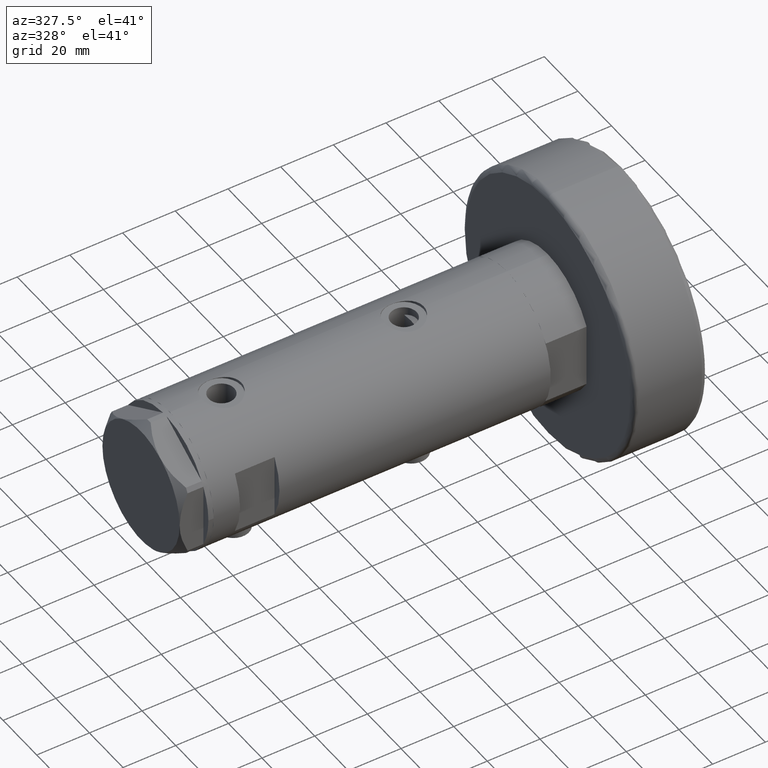
[diagram: clean part render]
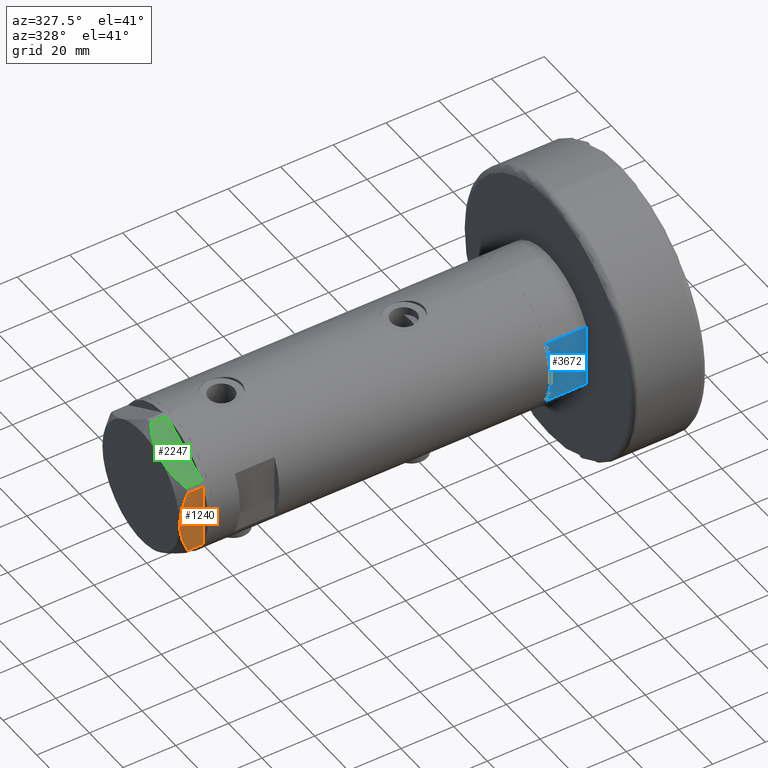
[diagram: same view with three faces highlighted in distinct colors, each labeled with its STEP entity id]
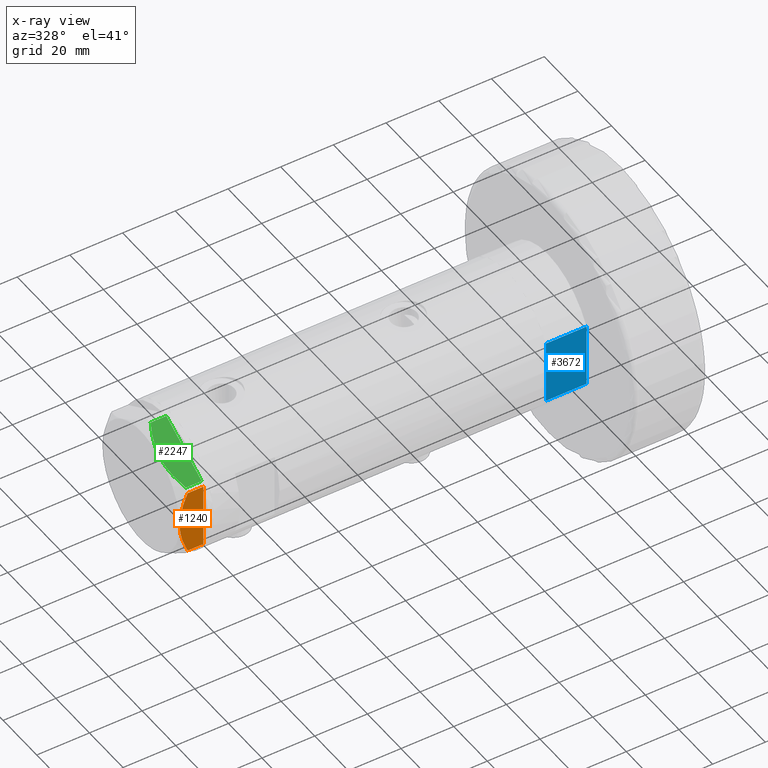
[diagram: x-ray of the same camera — body ghosted, the three highlighted faces saturated]
A machine part, auxiliary view with three faces highlighted in distinct colors.
The next image is the same camera in x-ray (body ghosted, the three faces saturated) — at least one of them is partly hidden behind the body in this view.
Their STEP definitions:

[orange] entity #1240 — the highlighted planar face has unit normal (-0, 1, -0).
#23 = CARTESIAN_POINT ( 'NONE',  ( -22.99999999999990763, -12.12435565298232021, 0.000000000000000000 ) ) ;
#213 = B_SPLINE_CURVE_WITH_KNOTS ( 'NONE', 3,
 ( #1756, #1005, #634, #4595, #2598, #4172, #573, #4214, #949, #3017, #2202, #4640, #2628, #551 ),
 .UNSPECIFIED., .F., .F.,
 ( 4, 2, 2, 2, 2, 2, 4 ),
 ( 0.04777139595992690307, 0.04934380568070229761, 0.05091621540147769215, 0.05406103484302848122, 0.05720585428457927030, 0.05877826400535466483, 0.06035067372613005937 ),
 .UNSPECIFIED. ) ;
#234 = CARTESIAN_POINT ( 'NONE',  ( -22.99999999999999645, 13.27905619136132032, 0.000000000000000000 ) ) ;
#305 = ORIENTED_EDGE ( 'NONE', *, *, #1672, .T. ) ;
#306 = CARTESIAN_POINT ( 'NONE',  ( -22.99999999999999645, 13.27905619136132032, 0.000000000000000000 ) ) ;
#353 = VECTOR ( 'NONE', #1865, 1000.000000000000000 ) ;
#496 = EDGE_LOOP ( 'NONE', ( #2898, #2162, #305, #3348, #857, #2024, #3882 ) ) ;
#551 = CARTESIAN_POINT ( 'NONE',  ( -22.99999999999990763, -12.15905619136147564, 5.983800287807627072 ) ) ;
#573 = CARTESIAN_POINT ( 'NONE',  ( -22.99999999999992895, -5.228918809624124364, 8.433337033849854336 ) ) ;
#575 = VECTOR ( 'NONE', #1927, 1000.000000000000000 ) ;
#634 = CARTESIAN_POINT ( 'NONE',  ( -22.99999999999995026, -1.063773509315737442, 8.981438083606830602 ) ) ;
#746 = VERTEX_POINT ( 'NONE', #988 ) ;
#857 = ORIENTED_EDGE ( 'NONE', *, *, #4521, .T. ) ;
#860 = CARTESIAN_POINT ( 'NONE',  ( -23.00000000000004619, -8.112498833180673323E-14, 9.000000000000000000 ) ) ;
#876 = CARTESIAN_POINT ( 'NONE',  ( -22.99999999999997158, 6.734330413511419700, 8.039389741252668031 ) ) ;
#923 = CARTESIAN_POINT ( 'NONE',  ( -22.99999999999999289, 12.15905619136133176, 5.983800287807616414 ) ) ;
#942 = EDGE_CURVE ( 'NONE', #4042, #1374, #1011, .T. ) ;
#949 = CARTESIAN_POINT ( 'NONE',  ( -22.99999999999991829, -8.252113629125268801, 7.581642062680223226 ) ) ;
#977 = B_SPLINE_CURVE_WITH_KNOTS ( 'NONE', 3,
 ( #4858, #3233, #2917, #2509, #4885, #1332, #876, #4972, #2074, #3278 ),
 .UNSPECIFIED., .F., .F.,
 ( 4, 2, 2, 2, 4 ),
 ( 0.03516523594057416324, 0.03831677594541234300, 0.03989254594783143981, 0.04146831595025052969, 0.04777139595992690307 ),
 .UNSPECIFIED. ) ;
#988 = CARTESIAN_POINT ( 'NONE',  ( -22.99999999999999289, 12.15905619136133176, 0.000000000000000000 ) ) ;
#1005 = CARTESIAN_POINT ( 'NONE',  ( -22.99999999999995737, -0.5295934231897764244, 9.000000000000092371 ) ) ;
#1011 = LINE ( 'NONE', #234, #353 ) ;
#1039 = VECTOR ( 'NONE', #3715, 1000.000000000000000 ) ;
#1201 = VECTOR ( 'NONE', #2328, 1000.000000000000000 ) ;
#1240 = ADVANCED_FACE ( 'NONE', ( #2172 ), #4616, .F. ) ;
#1332 = CARTESIAN_POINT ( 'NONE',  ( -22.99999999999996803, 7.239756182922199024, 7.892186063422847120 ) ) ;
#1374 = VERTEX_POINT ( 'NONE', #23 ) ;
#1643 = DIRECTION ( 'NONE',  ( 0.000000000000000000, 0.000000000000000000, 1.000000000000000000 ) ) ;
#1672 = EDGE_CURVE ( 'NONE', #746, #4042, #3937, .T. ) ;
#1756 = CARTESIAN_POINT ( 'NONE',  ( -23.00000000000004619, -8.112498833180673323E-14, 9.000000000000000000 ) ) ;
#1865 = DIRECTION ( 'NONE',  ( 3.527173405730720141E-15, -1.000000000000000000, 0.000000000000000000 ) ) ;
#1927 = DIRECTION ( 'NONE',  ( 3.527173405730720141E-15, -1.000000000000000000, 0.000000000000000000 ) ) ;
#2024 = ORIENTED_EDGE ( 'NONE', *, *, #3034, .T. ) ;
#2074 = CARTESIAN_POINT ( 'NONE',  ( -22.99999999999995381, 2.122900714018063795, 9.000000000000092371 ) ) ;
#2081 = CARTESIAN_POINT ( 'NONE',  ( -22.99999999999999289, 12.12435565298215856, 0.000000000000000000 ) ) ;
#2137 = CARTESIAN_POINT ( 'NONE',  ( -22.99999999999990763, -12.15905619136147386, 9.000000000000000000 ) ) ;
#2162 = ORIENTED_EDGE ( 'NONE', *, *, #4340, .T. ) ;
#2172 = FACE_OUTER_BOUND ( 'NONE', #496, .T. ) ;
#2202 = CARTESIAN_POINT ( 'NONE',  ( -22.99999999999991118, -10.22738952213794761, 6.832470313674783746 ) ) ;
#2328 = DIRECTION ( 'NONE',  ( 0.000000000000000000, 0.000000000000000000, -1.000000000000000000 ) ) ;
#2509 = CARTESIAN_POINT ( 'NONE',  ( -22.99999999999997513, 8.748091966971378142, 7.396818978284571244 ) ) ;
#2528 = VERTEX_POINT ( 'NONE', #860 ) ;
#2598 = CARTESIAN_POINT ( 'NONE',  ( -22.99999999999993960, -2.643615312305158671, 8.854304560636265364 ) ) ;
#2628 = CARTESIAN_POINT ( 'NONE',  ( -22.99999999999990763, -11.68282849742335827, 6.206372352695425754 ) ) ;
#2777 = LINE ( 'NONE', #5213, #1201 ) ;
#2898 = ORIENTED_EDGE ( 'NONE', *, *, #4474, .F. ) ;
#2917 = CARTESIAN_POINT ( 'NONE',  ( -22.99999999999998579, 10.23890159976122050, 6.840812428290914404 ) ) ;
#3017 = CARTESIAN_POINT ( 'NONE',  ( -22.99999999999991829, -9.734726261263297431, 7.028924700095662281 ) ) ;
#3034 = EDGE_CURVE ( 'NONE', #4890, #5211, #3673, .T. ) ;
#3233 = CARTESIAN_POINT ( 'NONE',  ( -22.99999999999998934, 11.20825071633916359, 6.428173306378450746 ) ) ;
#3255 = CARTESIAN_POINT ( 'NONE',  ( -22.99999999999999645, 13.27905619136132032, 0.000000000000000000 ) ) ;
#3278 = CARTESIAN_POINT ( 'NONE',  ( -23.00000000000004619, -8.112498833180673323E-14, 9.000000000000000000 ) ) ;
#3348 = ORIENTED_EDGE ( 'NONE', *, *, #942, .T. ) ;
#3548 = VERTEX_POINT ( 'NONE', #923 ) ;
#3673 = LINE ( 'NONE', #2137, #3806 ) ;
#3715 = DIRECTION ( 'NONE',  ( 3.527173405730720141E-15, -1.000000000000000000, 0.000000000000000000 ) ) ;
#3806 = VECTOR ( 'NONE', #1643, 1000.000000000000000 ) ;
#3813 = DIRECTION ( 'NONE',  ( -3.527173405730720141E-15, 1.000000000000000000, 0.000000000000000000 ) ) ;
#3882 = ORIENTED_EDGE ( 'NONE', *, *, #5015, .F. ) ;
#3937 = LINE ( 'NONE', #306, #575 ) ;
#4042 = VERTEX_POINT ( 'NONE', #2081 ) ;
#4172 = CARTESIAN_POINT ( 'NONE',  ( -22.99999999999993250, -4.203926054641964782, 8.641681223122507305 ) ) ;
#4213 = DIRECTION ( 'NONE',  ( 1.000000000000000000, 3.527173405730720141E-15, -0.000000000000000000 ) ) ;
#4214 = CARTESIAN_POINT ( 'NONE',  ( -22.99999999999992184, -7.253003311474388148, 7.903276810347638737 ) ) ;
#4340 = EDGE_CURVE ( 'NONE', #3548, #746, #2777, .T. ) ;
#4442 = CARTESIAN_POINT ( 'NONE',  ( -22.99999999999990763, -12.15905619136147386, 0.000000000000000000 ) ) ;
#4467 = LINE ( 'NONE', #3255, #1039 ) ;
#4474 = EDGE_CURVE ( 'NONE', #3548, #2528, #977, .T. ) ;
#4521 = EDGE_CURVE ( 'NONE', #1374, #4890, #4467, .T. ) ;
#4595 = CARTESIAN_POINT ( 'NONE',  ( -22.99999999999993960, -2.119709279061923191, 8.908535212173198659 ) ) ;
#4616 = PLANE ( 'NONE',  #4650 ) ;
#4640 = CARTESIAN_POINT ( 'NONE',  ( -22.99999999999991118, -11.20155944044816287, 6.421102682632757741 ) ) ;
#4650 = AXIS2_PLACEMENT_3D ( 'NONE', #5027, #4213, #3813 ) ;
#4858 = CARTESIAN_POINT ( 'NONE',  ( -22.99999999999999289, 12.15905619136133176, 5.983800287807616414 ) ) ;
#4885 = CARTESIAN_POINT ( 'NONE',  ( -22.99999999999998224, 8.246028007352361300, 7.571131808646907935 ) ) ;
#4890 = VERTEX_POINT ( 'NONE', #4442 ) ;
#4972 = CARTESIAN_POINT ( 'NONE',  ( -22.99999999999996803, 4.194757081058972936, 8.703000351525203016 ) ) ;
#5015 = EDGE_CURVE ( 'NONE', #2528, #5211, #213, .T. ) ;
#5027 = CARTESIAN_POINT ( 'NONE',  ( -22.99999999999999645, 13.27905619136132032, 9.000000000000000000 ) ) ;
#5211 = VERTEX_POINT ( 'NONE', #5243 ) ;
#5213 = CARTESIAN_POINT ( 'NONE',  ( -22.99999999999999289, 12.15905619136133176, 9.000000000000000000 ) ) ;
#5243 = CARTESIAN_POINT ( 'NONE',  ( -22.99999999999990763, -12.15905619136147564, 5.983800287807627072 ) ) ;

[blue] entity #3672 — the highlighted planar face has unit normal (-0, 1, 0).
#2 = EDGE_CURVE ( 'NONE', #2511, #4717, #3242, .T. ) ;
#150 = VECTOR ( 'NONE', #3654, 1000.000000000000000 ) ;
#183 = EDGE_LOOP ( 'NONE', ( #1845, #1906, #5047, #3136 ) ) ;
#233 = CARTESIAN_POINT ( 'NONE',  ( 12.12435565298215323, -22.99999999999999645, 0.000000000000000000 ) ) ;
#327 = DIRECTION ( 'NONE',  ( 0.000000000000000000, -0.000000000000000000, 1.000000000000000000 ) ) ;
#338 = VECTOR ( 'NONE', #4454, 1000.000000000000000 ) ;
#397 = VERTEX_POINT ( 'NONE', #565 ) ;
#565 = CARTESIAN_POINT ( 'NONE',  ( 12.12435565298215323, -22.99999999999999645, 15.50000000000000000 ) ) ;
#802 = CARTESIAN_POINT ( 'NONE',  ( -12.12435565298215145, -22.99999999999999645, 0.000000000000000000 ) ) ;
#1031 = AXIS2_PLACEMENT_3D ( 'NONE', #4458, #2852, #327 ) ;
#1187 = EDGE_CURVE ( 'NONE', #397, #4717, #3607, .T. ) ;
#1472 = PLANE ( 'NONE',  #1031 ) ;
#1845 = ORIENTED_EDGE ( 'NONE', *, *, #1187, .T. ) ;
#1906 = ORIENTED_EDGE ( 'NONE', *, *, #2, .F. ) ;
#2038 = CARTESIAN_POINT ( 'NONE',  ( -12.12435565298215145, -22.99999999999999645, 15.50000000000000000 ) ) ;
#2314 = EDGE_CURVE ( 'NONE', #5083, #2511, #2786, .T. ) ;
#2511 = VERTEX_POINT ( 'NONE', #4586 ) ;
#2786 = LINE ( 'NONE', #802, #4824 ) ;
#2822 = LINE ( 'NONE', #4066, #4242 ) ;
#2852 = DIRECTION ( 'NONE',  ( -0.000000000000000000, 1.000000000000000000, 0.000000000000000000 ) ) ;
#2974 = CARTESIAN_POINT ( 'NONE',  ( -12.12435565298215145, -22.99999999999999645, 0.000000000000000000 ) ) ;
#3136 = ORIENTED_EDGE ( 'NONE', *, *, #3502, .T. ) ;
#3242 = LINE ( 'NONE', #2974, #338 ) ;
#3275 = DIRECTION ( 'NONE',  ( -0.000000000000000000, -0.000000000000000000, 1.000000000000000000 ) ) ;
#3502 = EDGE_CURVE ( 'NONE', #5083, #397, #2822, .T. ) ;
#3588 = DIRECTION ( 'NONE',  ( -1.000000000000000000, -0.000000000000000000, -0.000000000000000000 ) ) ;
#3607 = LINE ( 'NONE', #2038, #150 ) ;
#3654 = DIRECTION ( 'NONE',  ( -1.000000000000000000, -0.000000000000000000, -0.000000000000000000 ) ) ;
#3672 = ADVANCED_FACE ( 'NONE', ( #3959 ), #1472, .F. ) ;
#3959 = FACE_OUTER_BOUND ( 'NONE', #183, .T. ) ;
#4066 = CARTESIAN_POINT ( 'NONE',  ( 12.12435565298215323, -22.99999999999999645, 0.000000000000000000 ) ) ;
#4242 = VECTOR ( 'NONE', #3275, 1000.000000000000000 ) ;
#4454 = DIRECTION ( 'NONE',  ( -0.000000000000000000, -0.000000000000000000, 1.000000000000000000 ) ) ;
#4458 = CARTESIAN_POINT ( 'NONE',  ( -12.12435565298215145, -22.99999999999999645, 0.000000000000000000 ) ) ;
#4586 = CARTESIAN_POINT ( 'NONE',  ( -12.12435565298215501, -22.99999999999999645, 0.000000000000000000 ) ) ;
#4717 = VERTEX_POINT ( 'NONE', #4761 ) ;
#4761 = CARTESIAN_POINT ( 'NONE',  ( -12.12435565298215323, -22.99999999999999645, 15.50000000000000000 ) ) ;
#4824 = VECTOR ( 'NONE', #3588, 1000.000000000000000 ) ;
#5047 = ORIENTED_EDGE ( 'NONE', *, *, #2314, .F. ) ;
#5083 = VERTEX_POINT ( 'NONE', #233 ) ;

[green] entity #2247 — the highlighted planar face has unit normal (-0, 0.5, -0.866).
#22 = VECTOR ( 'NONE', #5028, 1000.000000000000000 ) ;
#40 = DIRECTION ( 'NONE',  ( 0.8660254037844415942, -0.4999999999999950595, 0.000000000000000000 ) ) ;
#56 = CARTESIAN_POINT ( 'NONE',  ( -15.16323225988328538, -17.80361615569431777, 8.637313967156948991 ) ) ;
#137 = ORIENTED_EDGE ( 'NONE', *, *, #3018, .T. ) ;
#182 = CARTESIAN_POINT ( 'NONE',  ( -4.357207709417335373, -24.04247733877546267, 7.570552255230290406 ) ) ;
#439 = CARTESIAN_POINT ( 'NONE',  ( -13.80210138309694301, -18.58946543380922378, 8.852712638955804181 ) ) ;
#465 = LINE ( 'NONE', #855, #3133 ) ;
#507 = CARTESIAN_POINT ( 'NONE',  ( -20.37350567916426058, -14.79546339452094017, 6.877782426143456362 ) ) ;
#619 = B_SPLINE_CURVE_WITH_KNOTS ( 'NONE', 3,
 ( #1391, #2992, #4619, #978, #2601, #182, #1814, #4250, #3411, #2234 ),
 .UNSPECIFIED., .F., .F.,
 ( 4, 2, 2, 2, 4 ),
 ( 0.01376519981810312397, 0.01998941321701459134, 0.02154546656674245428, 0.02310151991647032069, 0.02621362661592604310 ),
 .UNSPECIFIED. ) ;
#717 = DIRECTION ( 'NONE',  ( -0.000000000000000000, 0.000000000000000000, -1.000000000000000000 ) ) ;
#738 = DIRECTION ( 'NONE',  ( 0.000000000000000000, 0.000000000000000000, 1.000000000000000000 ) ) ;
#851 = B_SPLINE_CURVE_WITH_KNOTS ( 'NONE', 3,
 ( #1638, #507, #3334, #3311, #56, #439, #3687, #2054, #1741, #2450 ),
 .UNSPECIFIED., .F., .F.,
 ( 4, 2, 2, 2, 4 ),
 ( 0.001228959670438514989, 0.007497079744270818830, 0.01063113978118697227, 0.01219816979964504812, 0.01376519981810312397 ),
 .UNSPECIFIED. ) ;
#855 = CARTESIAN_POINT ( 'NONE',  ( -22.99999999999990408, -13.27905619136147841, 0.000000000000000000 ) ) ;
#900 = VERTEX_POINT ( 'NONE', #3307 ) ;
#972 = EDGE_CURVE ( 'NONE', #1159, #4473, #619, .T. ) ;
#978 = CARTESIAN_POINT ( 'NONE',  ( -5.671686373603866294, -23.28356272816335348, 8.040681765829727823 ) ) ;
#1074 = CARTESIAN_POINT ( 'NONE',  ( -22.03005154776132102, -13.83905619136147536, 9.000000000000000000 ) ) ;
#1159 = VERTEX_POINT ( 'NONE', #2969 ) ;
#1185 = AXIS2_PLACEMENT_3D ( 'NONE', #3868, #3431, #3074 ) ;
#1391 = CARTESIAN_POINT ( 'NONE',  ( -11.49999999999990585, -19.91858428704219364, 9.000000000000000000 ) ) ;
#1403 = CARTESIAN_POINT ( 'NONE',  ( -22.03005154776146313, -13.83905619136139364, 5.983800287807550689 ) ) ;
#1434 = FACE_OUTER_BOUND ( 'NONE', #4694, .T. ) ;
#1493 = VERTEX_POINT ( 'NONE', #4086 ) ;
#1524 = VECTOR ( 'NONE', #717, 1000.000000000000000 ) ;
#1605 = EDGE_CURVE ( 'NONE', #1673, #4473, #2292, .T. ) ;
#1638 = CARTESIAN_POINT ( 'NONE',  ( -22.03005154776146313, -13.83905619136139364, 5.983800287807550689 ) ) ;
#1665 = EDGE_CURVE ( 'NONE', #2644, #900, #3107, .T. ) ;
#1673 = VERTEX_POINT ( 'NONE', #3529 ) ;
#1741 = CARTESIAN_POINT ( 'NONE',  ( -11.95865151389046588, -19.65378171203314395, 9.000000000000095923 ) ) ;
#1814 = CARTESIAN_POINT ( 'NONE',  ( -3.925137811031424562, -24.29193301091729396, 7.397272853992039821 ) ) ;
#2054 = CARTESIAN_POINT ( 'NONE',  ( -12.41906678023023325, -19.38796083407287085, 8.981686407609506873 ) ) ;
#2132 = CARTESIAN_POINT ( 'NONE',  ( -0.9699484522404678843, -25.99811238272155123, 5.983800287808756835 ) ) ;
#2188 = ORIENTED_EDGE ( 'NONE', *, *, #1665, .T. ) ;
#2223 = VECTOR ( 'NONE', #4423, 1000.000000000000000 ) ;
#2234 = CARTESIAN_POINT ( 'NONE',  ( -0.9699484522404678843, -25.99811238272155123, 5.983800287808756835 ) ) ;
#2247 = ADVANCED_FACE ( 'NONE', ( #1434 ), #3045, .F. ) ;
#2292 = LINE ( 'NONE', #2347, #4920 ) ;
#2347 = CARTESIAN_POINT ( 'NONE',  ( -0.9699484522383977625, -25.99811238272274494, 9.000000000000000000 ) ) ;
#2373 = ORIENTED_EDGE ( 'NONE', *, *, #1605, .T. ) ;
#2450 = CARTESIAN_POINT ( 'NONE',  ( -11.49999999999990585, -19.91858428704219364, 9.000000000000000000 ) ) ;
#2601 = CARTESIAN_POINT ( 'NONE',  ( -5.229981517799206614, -23.53858114556453529, 7.892128867758890998 ) ) ;
#2644 = VERTEX_POINT ( 'NONE', #1403 ) ;
#2664 = LINE ( 'NONE', #4277, #22 ) ;
#2969 = CARTESIAN_POINT ( 'NONE',  ( -11.49999999999990585, -19.91858428704219364, 9.000000000000000000 ) ) ;
#2992 = CARTESIAN_POINT ( 'NONE',  ( -9.678244919010385416, -20.97037507344893115, 9.000000000000088818 ) ) ;
#3018 = EDGE_CURVE ( 'NONE', #900, #1493, #465, .T. ) ;
#3045 = PLANE ( 'NONE',  #1185 ) ;
#3074 = DIRECTION ( 'NONE',  ( -0.8660254037844414832, 0.4999999999999950040, 0.000000000000000000 ) ) ;
#3107 = LINE ( 'NONE', #1074, #1524 ) ;
#3133 = VECTOR ( 'NONE', #40, 1000.000000000000000 ) ;
#3307 = CARTESIAN_POINT ( 'NONE',  ( -22.03005154776132102, -13.83905619136147536, 0.000000000000000000 ) ) ;
#3311 = CARTESIAN_POINT ( 'NONE',  ( -16.05322244309625290, -17.28978008384019915, 8.426899937603781865 ) ) ;
#3334 = CARTESIAN_POINT ( 'NONE',  ( -18.67981377008999644, -15.77331687414923778, 7.629374868826104716 ) ) ;
#3382 = CARTESIAN_POINT ( 'NONE',  ( -0.9999999999997406519, -25.98076211353317433, 0.000000000000000000 ) ) ;
#3411 = CARTESIAN_POINT ( 'NONE',  ( -1.799196345398571983, -25.51934588838179607, 6.431317509510369845 ) ) ;
#3431 = DIRECTION ( 'NONE',  ( 0.4999999999999950595, 0.8660254037844415942, -0.000000000000000000 ) ) ;
#3447 = ORIENTED_EDGE ( 'NONE', *, *, #4460, .F. ) ;
#3529 = CARTESIAN_POINT ( 'NONE',  ( -0.9699484522383943208, -25.99811238272274494, 0.000000000000000000 ) ) ;
#3615 = ORIENTED_EDGE ( 'NONE', *, *, #5006, .T. ) ;
#3687 = CARTESIAN_POINT ( 'NONE',  ( -13.34348161667001698, -18.85424967941148822, 8.907842277728438063 ) ) ;
#3868 = CARTESIAN_POINT ( 'NONE',  ( -22.99999999999990408, -13.27905619136147841, 9.000000000000000000 ) ) ;
#4018 = CARTESIAN_POINT ( 'NONE',  ( -22.99999999999990408, -13.27905619136147841, 0.000000000000000000 ) ) ;
#4086 = CARTESIAN_POINT ( 'NONE',  ( -21.99999999999998224, -13.85640646055105485, 0.000000000000000000 ) ) ;
#4250 = CARTESIAN_POINT ( 'NONE',  ( -2.640413878808339110, -25.03366871902064261, 6.844201024439214187 ) ) ;
#4277 = CARTESIAN_POINT ( 'NONE',  ( -22.99999999999990408, -13.27905619136147841, 0.000000000000000000 ) ) ;
#4398 = LINE ( 'NONE', #4018, #2223 ) ;
#4423 = DIRECTION ( 'NONE',  ( 0.8660254037844415942, -0.4999999999999950595, 0.000000000000000000 ) ) ;
#4460 = EDGE_CURVE ( 'NONE', #2644, #1159, #851, .T. ) ;
#4473 = VERTEX_POINT ( 'NONE', #2132 ) ;
#4500 = ORIENTED_EDGE ( 'NONE', *, *, #972, .F. ) ;
#4619 = CARTESIAN_POINT ( 'NONE',  ( -7.884645426990268824, -22.00591022298511490, 8.707651728477127762 ) ) ;
#4694 = EDGE_LOOP ( 'NONE', ( #3447, #2188, #137, #3615, #5022, #2373, #4500 ) ) ;
#4779 = EDGE_CURVE ( 'NONE', #4978, #1673, #4398, .T. ) ;
#4920 = VECTOR ( 'NONE', #738, 1000.000000000000000 ) ;
#4978 = VERTEX_POINT ( 'NONE', #3382 ) ;
#5006 = EDGE_CURVE ( 'NONE', #1493, #4978, #2664, .T. ) ;
#5022 = ORIENTED_EDGE ( 'NONE', *, *, #4779, .T. ) ;
#5028 = DIRECTION ( 'NONE',  ( 0.8660254037844415942, -0.4999999999999950595, 0.000000000000000000 ) ) ;